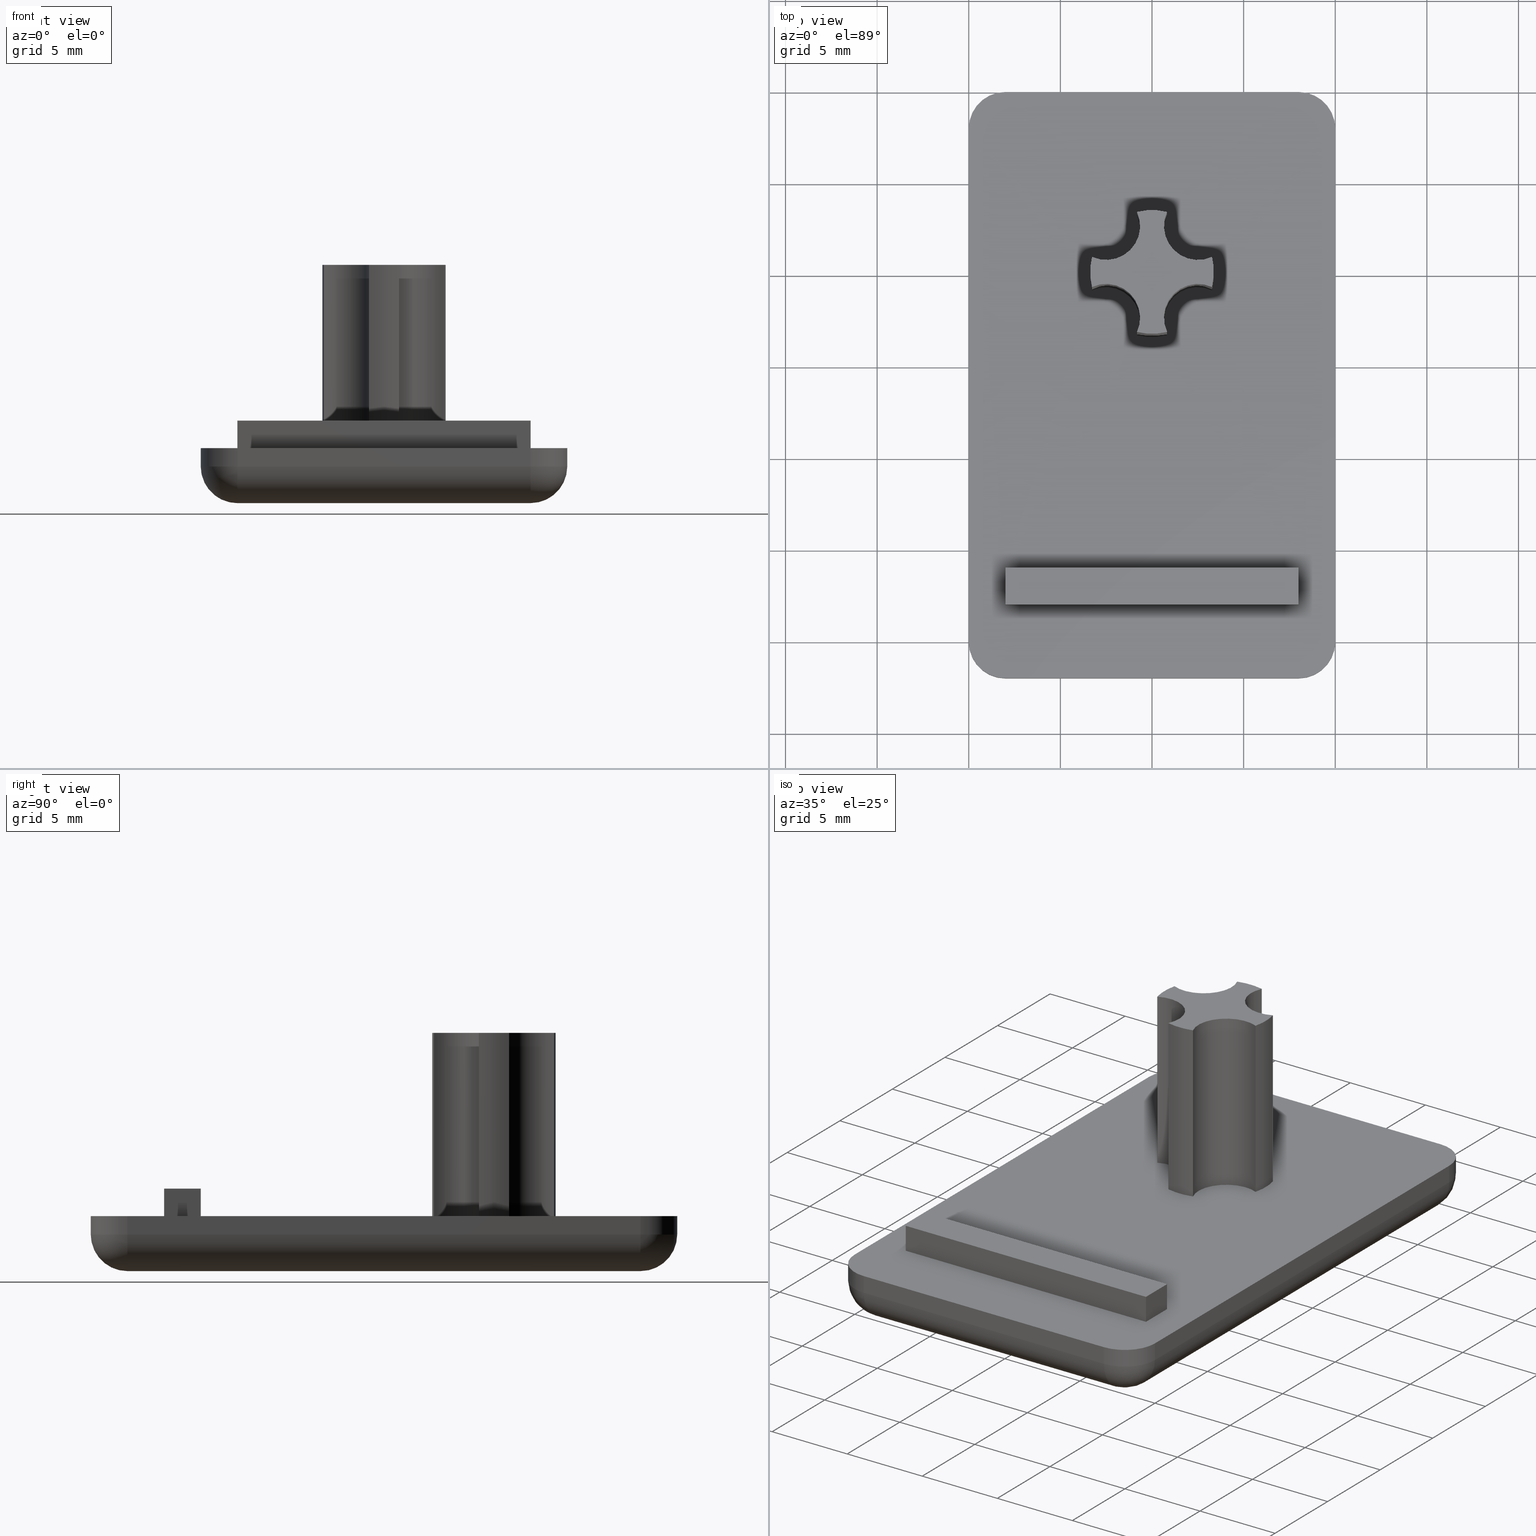
[diagram: canonical four-view strip — front | top / right | iso, engineering-drawing reading convention]
A machine part, canonical four-view strip (front | top / right | iso — engineering-drawing reading convention). The complete STEP part file that produces these views, byte-faithful:
ISO-10303-21;
HEADER;
/* Generated by software containing ST-Developer
 * from STEP Tools, Inc. (www.steptools.com) 
 */

FILE_DESCRIPTION(
/* description */ ('TAPPO 20x32 NERO'),
/* implementation_level */ '2;1');

FILE_NAME(
/* name */ 'C:\\Users\\srubbiani.DR\\Desktop\\18.002.00.stp',
/* time_stamp */ '2014-08-25T12:29:18+02:00',
/* author */ ('SRubbiani'),
/* organization */ (''),
/* preprocessor_version */ 'ST-DEVELOPER v15.2',
/* originating_system */ 'Autodesk Inventor 2014',
/* authorisation */ '');

FILE_SCHEMA (('AUTOMOTIVE_DESIGN { 1 0 10303 214 3 1 1 }'));
ENDSEC;

DATA;
#10=MECHANICAL_DESIGN_GEOMETRIC_PRESENTATION_REPRESENTATION('',(#13),#907);
#11=SHAPE_REPRESENTATION_RELATIONSHIP('SRR','None',#916,#12);
#12=ADVANCED_BREP_SHAPE_REPRESENTATION($,(#519),#906);
#13=STYLED_ITEM('',(#925),#519);
#14=FACE_BOUND('',#95,.T.);
#15=FACE_BOUND('',#96,.T.);
#16=FACE_BOUND('',#97,.T.);
#17=PLANE('',#543);
#18=PLANE('',#546);
#19=PLANE('',#547);
#20=PLANE('',#548);
#21=PLANE('',#549);
#22=PLANE('',#550);
#23=PLANE('',#551);
#24=PLANE('',#552);
#25=PLANE('',#577);
#26=PLANE('',#578);
#27=PLANE('',#581);
#28=PLANE('',#584);
#29=SPHERICAL_SURFACE('',#527,2.);
#30=SPHERICAL_SURFACE('',#532,2.);
#31=SPHERICAL_SURFACE('',#537,2.);
#32=SPHERICAL_SURFACE('',#539,2.);
#33=FACE_OUTER_BOUND('',#64,.T.);
#34=FACE_OUTER_BOUND('',#65,.T.);
#35=FACE_OUTER_BOUND('',#66,.T.);
#36=FACE_OUTER_BOUND('',#67,.T.);
#37=FACE_OUTER_BOUND('',#68,.T.);
#38=FACE_OUTER_BOUND('',#69,.T.);
#39=FACE_OUTER_BOUND('',#70,.T.);
#40=FACE_OUTER_BOUND('',#71,.T.);
#41=FACE_OUTER_BOUND('',#72,.T.);
#42=FACE_OUTER_BOUND('',#73,.T.);
#43=FACE_OUTER_BOUND('',#74,.T.);
#44=FACE_OUTER_BOUND('',#75,.T.);
#45=FACE_OUTER_BOUND('',#76,.T.);
#46=FACE_OUTER_BOUND('',#77,.T.);
#47=FACE_OUTER_BOUND('',#78,.T.);
#48=FACE_OUTER_BOUND('',#79,.T.);
#49=FACE_OUTER_BOUND('',#80,.T.);
#50=FACE_OUTER_BOUND('',#81,.T.);
#51=FACE_OUTER_BOUND('',#82,.T.);
#52=FACE_OUTER_BOUND('',#83,.T.);
#53=FACE_OUTER_BOUND('',#84,.T.);
#54=FACE_OUTER_BOUND('',#85,.T.);
#55=FACE_OUTER_BOUND('',#86,.T.);
#56=FACE_OUTER_BOUND('',#87,.T.);
#57=FACE_OUTER_BOUND('',#88,.T.);
#58=FACE_OUTER_BOUND('',#89,.T.);
#59=FACE_OUTER_BOUND('',#90,.T.);
#60=FACE_OUTER_BOUND('',#91,.T.);
#61=FACE_OUTER_BOUND('',#92,.T.);
#62=FACE_OUTER_BOUND('',#93,.T.);
#63=FACE_OUTER_BOUND('',#94,.T.);
#64=EDGE_LOOP('',(#326,#327,#328,#329));
#65=EDGE_LOOP('',(#330,#331,#332,#333));
#66=EDGE_LOOP('',(#334,#335,#336));
#67=EDGE_LOOP('',(#337,#338,#339,#340));
#68=EDGE_LOOP('',(#341,#342,#343));
#69=EDGE_LOOP('',(#344,#345,#346,#347));
#70=EDGE_LOOP('',(#348,#349,#350));
#71=EDGE_LOOP('',(#351,#352,#353));
#72=EDGE_LOOP('',(#354,#355,#356,#357));
#73=EDGE_LOOP('',(#358,#359,#360,#361));
#74=EDGE_LOOP('',(#362,#363,#364,#365));
#75=EDGE_LOOP('',(#366,#367,#368,#369));
#76=EDGE_LOOP('',(#370,#371,#372,#373));
#77=EDGE_LOOP('',(#374,#375,#376,#377));
#78=EDGE_LOOP('',(#378,#379,#380,#381));
#79=EDGE_LOOP('',(#382,#383,#384,#385));
#80=EDGE_LOOP('',(#386,#387,#388,#389));
#81=EDGE_LOOP('',(#390,#391,#392,#393));
#82=EDGE_LOOP('',(#394,#395,#396,#397));
#83=EDGE_LOOP('',(#398,#399,#400,#401));
#84=EDGE_LOOP('',(#402,#403,#404,#405));
#85=EDGE_LOOP('',(#406,#407,#408,#409));
#86=EDGE_LOOP('',(#410,#411,#412,#413));
#87=EDGE_LOOP('',(#414,#415,#416,#417));
#88=EDGE_LOOP('',(#418,#419,#420,#421));
#89=EDGE_LOOP('',(#422,#423,#424,#425));
#90=EDGE_LOOP('',(#426,#427,#428,#429,#430,#431,#432,#433));
#91=EDGE_LOOP('',(#434,#435,#436,#437));
#92=EDGE_LOOP('',(#438,#439,#440,#441));
#93=EDGE_LOOP('',(#442,#443,#444,#445));
#94=EDGE_LOOP('',(#446,#447,#448,#449));
#95=EDGE_LOOP('',(#450,#451,#452,#453));
#96=EDGE_LOOP('',(#454,#455,#456,#457,#458,#459,#460,#461));
#97=EDGE_LOOP('',(#462,#463,#464,#465,#466,#467,#468,#469));
#98=LINE('',#761,#138);
#99=LINE('',#764,#139);
#100=LINE('',#769,#140);
#101=LINE('',#772,#141);
#102=LINE('',#779,#142);
#103=LINE('',#782,#143);
#104=LINE('',#788,#144);
#105=LINE('',#791,#145);
#106=LINE('',#798,#146);
#107=LINE('',#801,#147);
#108=LINE('',#804,#148);
#109=LINE('',#805,#149);
#110=LINE('',#808,#150);
#111=LINE('',#812,#151);
#112=LINE('',#813,#152);
#113=LINE('',#818,#153);
#114=LINE('',#820,#154);
#115=LINE('',#822,#155);
#116=LINE('',#823,#156);
#117=LINE('',#826,#157);
#118=LINE('',#828,#158);
#119=LINE('',#829,#159);
#120=LINE('',#832,#160);
#121=LINE('',#834,#161);
#122=LINE('',#835,#162);
#123=LINE('',#837,#163);
#124=LINE('',#838,#164);
#125=LINE('',#845,#165);
#126=LINE('',#848,#166);
#127=LINE('',#853,#167);
#128=LINE('',#859,#168);
#129=LINE('',#865,#169);
#130=LINE('',#872,#170);
#131=LINE('',#878,#171);
#132=LINE('',#884,#172);
#133=LINE('',#891,#173);
#134=LINE('',#892,#174);
#135=LINE('',#896,#175);
#136=LINE('',#899,#176);
#137=LINE('',#900,#177);
#138=VECTOR('',#591,16.);
#139=VECTOR('',#594,16.);
#140=VECTOR('',#599,28.);
#141=VECTOR('',#602,28.);
#142=VECTOR('',#611,16.);
#143=VECTOR('',#614,16.);
#144=VECTOR('',#623,28.);
#145=VECTOR('',#626,28.);
#146=VECTOR('',#637,1.);
#147=VECTOR('',#640,1.);
#148=VECTOR('',#643,1.);
#149=VECTOR('',#644,16.);
#150=VECTOR('',#647,1.);
#151=VECTOR('',#652,1.);
#152=VECTOR('',#653,28.);
#153=VECTOR('',#658,2.);
#154=VECTOR('',#659,1.5);
#155=VECTOR('',#660,2.);
#156=VECTOR('',#661,1.5);
#157=VECTOR('',#664,16.);
#158=VECTOR('',#665,16.);
#159=VECTOR('',#666,1.5);
#160=VECTOR('',#669,2.);
#161=VECTOR('',#670,2.);
#162=VECTOR('',#671,1.5);
#163=VECTOR('',#674,16.);
#164=VECTOR('',#675,16.);
#165=VECTOR('',#682,10.);
#166=VECTOR('',#685,10.);
#167=VECTOR('',#690,10.);
#168=VECTOR('',#697,10.);
#169=VECTOR('',#704,10.);
#170=VECTOR('',#713,10.);
#171=VECTOR('',#720,10.);
#172=VECTOR('',#727,10.);
#173=VECTOR('',#738,28.);
#174=VECTOR('',#739,1.);
#175=VECTOR('',#744,1.);
#176=VECTOR('',#747,16.);
#177=VECTOR('',#748,1.);
#178=CIRCLE('',#522,2.);
#179=CIRCLE('',#523,2.);
#180=CIRCLE('',#525,2.);
#181=CIRCLE('',#526,2.);
#182=CIRCLE('',#528,2.);
#183=CIRCLE('',#530,2.);
#184=CIRCLE('',#531,2.);
#185=CIRCLE('',#533,2.);
#186=CIRCLE('',#535,2.);
#187=CIRCLE('',#536,2.);
#188=CIRCLE('',#538,2.);
#189=CIRCLE('',#540,2.);
#190=CIRCLE('',#542,2.);
#191=CIRCLE('',#545,2.);
#192=CIRCLE('',#554,3.37499999999998);
#193=CIRCLE('',#555,3.37499999999998);
#194=CIRCLE('',#557,1.85);
#195=CIRCLE('',#558,1.85);
#196=CIRCLE('',#560,3.375);
#197=CIRCLE('',#561,3.375);
#198=CIRCLE('',#563,1.85);
#199=CIRCLE('',#564,1.85);
#200=CIRCLE('',#566,1.85);
#201=CIRCLE('',#567,1.85);
#202=CIRCLE('',#569,3.375);
#203=CIRCLE('',#570,3.375);
#204=CIRCLE('',#572,1.85);
#205=CIRCLE('',#573,1.85);
#206=CIRCLE('',#575,3.375);
#207=CIRCLE('',#576,3.375);
#208=CIRCLE('',#580,2.);
#209=CIRCLE('',#583,2.);
#210=VERTEX_POINT('',#757);
#211=VERTEX_POINT('',#758);
#212=VERTEX_POINT('',#760);
#213=VERTEX_POINT('',#762);
#214=VERTEX_POINT('',#766);
#215=VERTEX_POINT('',#768);
#216=VERTEX_POINT('',#770);
#217=VERTEX_POINT('',#776);
#218=VERTEX_POINT('',#778);
#219=VERTEX_POINT('',#780);
#220=VERTEX_POINT('',#786);
#221=VERTEX_POINT('',#789);
#222=VERTEX_POINT('',#797);
#223=VERTEX_POINT('',#799);
#224=VERTEX_POINT('',#803);
#225=VERTEX_POINT('',#807);
#226=VERTEX_POINT('',#811);
#227=VERTEX_POINT('',#816);
#228=VERTEX_POINT('',#817);
#229=VERTEX_POINT('',#819);
#230=VERTEX_POINT('',#821);
#231=VERTEX_POINT('',#825);
#232=VERTEX_POINT('',#827);
#233=VERTEX_POINT('',#831);
#234=VERTEX_POINT('',#833);
#235=VERTEX_POINT('',#841);
#236=VERTEX_POINT('',#842);
#237=VERTEX_POINT('',#844);
#238=VERTEX_POINT('',#846);
#239=VERTEX_POINT('',#850);
#240=VERTEX_POINT('',#852);
#241=VERTEX_POINT('',#856);
#242=VERTEX_POINT('',#858);
#243=VERTEX_POINT('',#862);
#244=VERTEX_POINT('',#864);
#245=VERTEX_POINT('',#868);
#246=VERTEX_POINT('',#870);
#247=VERTEX_POINT('',#874);
#248=VERTEX_POINT('',#876);
#249=VERTEX_POINT('',#880);
#250=VERTEX_POINT('',#882);
#251=VERTEX_POINT('',#890);
#252=VERTEX_POINT('',#894);
#253=VERTEX_POINT('',#898);
#254=EDGE_CURVE('',#210,#211,#178,.T.);
#255=EDGE_CURVE('',#211,#212,#98,.T.);
#256=EDGE_CURVE('',#212,#213,#179,.T.);
#257=EDGE_CURVE('',#213,#210,#99,.T.);
#258=EDGE_CURVE('',#214,#212,#180,.T.);
#259=EDGE_CURVE('',#212,#215,#100,.T.);
#260=EDGE_CURVE('',#215,#216,#181,.T.);
#261=EDGE_CURVE('',#216,#214,#101,.T.);
#262=EDGE_CURVE('',#214,#213,#182,.T.);
#263=EDGE_CURVE('',#217,#215,#183,.T.);
#264=EDGE_CURVE('',#215,#218,#102,.T.);
#265=EDGE_CURVE('',#218,#219,#184,.T.);
#266=EDGE_CURVE('',#219,#217,#103,.T.);
#267=EDGE_CURVE('',#217,#216,#185,.T.);
#268=EDGE_CURVE('',#220,#218,#186,.T.);
#269=EDGE_CURVE('',#218,#211,#104,.T.);
#270=EDGE_CURVE('',#211,#221,#187,.T.);
#271=EDGE_CURVE('',#221,#220,#105,.T.);
#272=EDGE_CURVE('',#220,#219,#188,.T.);
#273=EDGE_CURVE('',#210,#221,#189,.T.);
#274=EDGE_CURVE('',#217,#222,#106,.T.);
#275=EDGE_CURVE('',#223,#222,#190,.T.);
#276=EDGE_CURVE('',#216,#223,#107,.T.);
#277=EDGE_CURVE('',#219,#224,#108,.T.);
#278=EDGE_CURVE('',#222,#224,#109,.T.);
#279=EDGE_CURVE('',#220,#225,#110,.T.);
#280=EDGE_CURVE('',#224,#225,#191,.T.);
#281=EDGE_CURVE('',#221,#226,#111,.T.);
#282=EDGE_CURVE('',#225,#226,#112,.T.);
#283=EDGE_CURVE('',#227,#228,#113,.T.);
#284=EDGE_CURVE('',#227,#229,#114,.T.);
#285=EDGE_CURVE('',#230,#229,#115,.T.);
#286=EDGE_CURVE('',#228,#230,#116,.T.);
#287=EDGE_CURVE('',#228,#231,#117,.T.);
#288=EDGE_CURVE('',#232,#230,#118,.T.);
#289=EDGE_CURVE('',#231,#232,#119,.T.);
#290=EDGE_CURVE('',#231,#233,#120,.T.);
#291=EDGE_CURVE('',#234,#232,#121,.T.);
#292=EDGE_CURVE('',#233,#234,#122,.T.);
#293=EDGE_CURVE('',#233,#227,#123,.T.);
#294=EDGE_CURVE('',#229,#234,#124,.T.);
#295=EDGE_CURVE('',#235,#236,#192,.T.);
#296=EDGE_CURVE('',#235,#237,#125,.T.);
#297=EDGE_CURVE('',#238,#237,#193,.T.);
#298=EDGE_CURVE('',#236,#238,#126,.T.);
#299=EDGE_CURVE('',#239,#235,#194,.T.);
#300=EDGE_CURVE('',#239,#240,#127,.T.);
#301=EDGE_CURVE('',#237,#240,#195,.T.);
#302=EDGE_CURVE('',#241,#239,#196,.T.);
#303=EDGE_CURVE('',#241,#242,#128,.T.);
#304=EDGE_CURVE('',#240,#242,#197,.T.);
#305=EDGE_CURVE('',#243,#241,#198,.T.);
#306=EDGE_CURVE('',#243,#244,#129,.T.);
#307=EDGE_CURVE('',#242,#244,#199,.T.);
#308=EDGE_CURVE('',#236,#245,#200,.T.);
#309=EDGE_CURVE('',#246,#238,#201,.T.);
#310=EDGE_CURVE('',#245,#246,#130,.T.);
#311=EDGE_CURVE('',#245,#247,#202,.T.);
#312=EDGE_CURVE('',#248,#246,#203,.T.);
#313=EDGE_CURVE('',#247,#248,#131,.T.);
#314=EDGE_CURVE('',#247,#249,#204,.T.);
#315=EDGE_CURVE('',#250,#248,#205,.T.);
#316=EDGE_CURVE('',#249,#250,#132,.T.);
#317=EDGE_CURVE('',#249,#243,#206,.T.);
#318=EDGE_CURVE('',#244,#250,#207,.T.);
#319=EDGE_CURVE('',#251,#223,#133,.T.);
#320=EDGE_CURVE('',#214,#251,#134,.T.);
#321=EDGE_CURVE('',#252,#251,#208,.T.);
#322=EDGE_CURVE('',#213,#252,#135,.T.);
#323=EDGE_CURVE('',#253,#252,#136,.T.);
#324=EDGE_CURVE('',#210,#253,#137,.T.);
#325=EDGE_CURVE('',#226,#253,#209,.T.);
#326=ORIENTED_EDGE('',*,*,#254,.T.);
#327=ORIENTED_EDGE('',*,*,#255,.T.);
#328=ORIENTED_EDGE('',*,*,#256,.T.);
#329=ORIENTED_EDGE('',*,*,#257,.T.);
#330=ORIENTED_EDGE('',*,*,#258,.T.);
#331=ORIENTED_EDGE('',*,*,#259,.T.);
#332=ORIENTED_EDGE('',*,*,#260,.T.);
#333=ORIENTED_EDGE('',*,*,#261,.T.);
#334=ORIENTED_EDGE('',*,*,#258,.F.);
#335=ORIENTED_EDGE('',*,*,#262,.T.);
#336=ORIENTED_EDGE('',*,*,#256,.F.);
#337=ORIENTED_EDGE('',*,*,#263,.T.);
#338=ORIENTED_EDGE('',*,*,#264,.T.);
#339=ORIENTED_EDGE('',*,*,#265,.T.);
#340=ORIENTED_EDGE('',*,*,#266,.T.);
#341=ORIENTED_EDGE('',*,*,#263,.F.);
#342=ORIENTED_EDGE('',*,*,#267,.T.);
#343=ORIENTED_EDGE('',*,*,#260,.F.);
#344=ORIENTED_EDGE('',*,*,#268,.T.);
#345=ORIENTED_EDGE('',*,*,#269,.T.);
#346=ORIENTED_EDGE('',*,*,#270,.T.);
#347=ORIENTED_EDGE('',*,*,#271,.T.);
#348=ORIENTED_EDGE('',*,*,#268,.F.);
#349=ORIENTED_EDGE('',*,*,#272,.T.);
#350=ORIENTED_EDGE('',*,*,#265,.F.);
#351=ORIENTED_EDGE('',*,*,#254,.F.);
#352=ORIENTED_EDGE('',*,*,#273,.T.);
#353=ORIENTED_EDGE('',*,*,#270,.F.);
#354=ORIENTED_EDGE('',*,*,#267,.F.);
#355=ORIENTED_EDGE('',*,*,#274,.T.);
#356=ORIENTED_EDGE('',*,*,#275,.F.);
#357=ORIENTED_EDGE('',*,*,#276,.F.);
#358=ORIENTED_EDGE('',*,*,#266,.F.);
#359=ORIENTED_EDGE('',*,*,#277,.T.);
#360=ORIENTED_EDGE('',*,*,#278,.F.);
#361=ORIENTED_EDGE('',*,*,#274,.F.);
#362=ORIENTED_EDGE('',*,*,#272,.F.);
#363=ORIENTED_EDGE('',*,*,#279,.T.);
#364=ORIENTED_EDGE('',*,*,#280,.F.);
#365=ORIENTED_EDGE('',*,*,#277,.F.);
#366=ORIENTED_EDGE('',*,*,#271,.F.);
#367=ORIENTED_EDGE('',*,*,#281,.T.);
#368=ORIENTED_EDGE('',*,*,#282,.F.);
#369=ORIENTED_EDGE('',*,*,#279,.F.);
#370=ORIENTED_EDGE('',*,*,#255,.F.);
#371=ORIENTED_EDGE('',*,*,#269,.F.);
#372=ORIENTED_EDGE('',*,*,#264,.F.);
#373=ORIENTED_EDGE('',*,*,#259,.F.);
#374=ORIENTED_EDGE('',*,*,#283,.F.);
#375=ORIENTED_EDGE('',*,*,#284,.T.);
#376=ORIENTED_EDGE('',*,*,#285,.F.);
#377=ORIENTED_EDGE('',*,*,#286,.F.);
#378=ORIENTED_EDGE('',*,*,#287,.F.);
#379=ORIENTED_EDGE('',*,*,#286,.T.);
#380=ORIENTED_EDGE('',*,*,#288,.F.);
#381=ORIENTED_EDGE('',*,*,#289,.F.);
#382=ORIENTED_EDGE('',*,*,#290,.F.);
#383=ORIENTED_EDGE('',*,*,#289,.T.);
#384=ORIENTED_EDGE('',*,*,#291,.F.);
#385=ORIENTED_EDGE('',*,*,#292,.F.);
#386=ORIENTED_EDGE('',*,*,#293,.F.);
#387=ORIENTED_EDGE('',*,*,#292,.T.);
#388=ORIENTED_EDGE('',*,*,#294,.F.);
#389=ORIENTED_EDGE('',*,*,#284,.F.);
#390=ORIENTED_EDGE('',*,*,#294,.T.);
#391=ORIENTED_EDGE('',*,*,#291,.T.);
#392=ORIENTED_EDGE('',*,*,#288,.T.);
#393=ORIENTED_EDGE('',*,*,#285,.T.);
#394=ORIENTED_EDGE('',*,*,#295,.F.);
#395=ORIENTED_EDGE('',*,*,#296,.T.);
#396=ORIENTED_EDGE('',*,*,#297,.F.);
#397=ORIENTED_EDGE('',*,*,#298,.F.);
#398=ORIENTED_EDGE('',*,*,#299,.F.);
#399=ORIENTED_EDGE('',*,*,#300,.T.);
#400=ORIENTED_EDGE('',*,*,#301,.F.);
#401=ORIENTED_EDGE('',*,*,#296,.F.);
#402=ORIENTED_EDGE('',*,*,#302,.F.);
#403=ORIENTED_EDGE('',*,*,#303,.T.);
#404=ORIENTED_EDGE('',*,*,#304,.F.);
#405=ORIENTED_EDGE('',*,*,#300,.F.);
#406=ORIENTED_EDGE('',*,*,#305,.F.);
#407=ORIENTED_EDGE('',*,*,#306,.T.);
#408=ORIENTED_EDGE('',*,*,#307,.F.);
#409=ORIENTED_EDGE('',*,*,#303,.F.);
#410=ORIENTED_EDGE('',*,*,#308,.F.);
#411=ORIENTED_EDGE('',*,*,#298,.T.);
#412=ORIENTED_EDGE('',*,*,#309,.F.);
#413=ORIENTED_EDGE('',*,*,#310,.F.);
#414=ORIENTED_EDGE('',*,*,#311,.F.);
#415=ORIENTED_EDGE('',*,*,#310,.T.);
#416=ORIENTED_EDGE('',*,*,#312,.F.);
#417=ORIENTED_EDGE('',*,*,#313,.F.);
#418=ORIENTED_EDGE('',*,*,#314,.F.);
#419=ORIENTED_EDGE('',*,*,#313,.T.);
#420=ORIENTED_EDGE('',*,*,#315,.F.);
#421=ORIENTED_EDGE('',*,*,#316,.F.);
#422=ORIENTED_EDGE('',*,*,#317,.F.);
#423=ORIENTED_EDGE('',*,*,#316,.T.);
#424=ORIENTED_EDGE('',*,*,#318,.F.);
#425=ORIENTED_EDGE('',*,*,#306,.F.);
#426=ORIENTED_EDGE('',*,*,#307,.T.);
#427=ORIENTED_EDGE('',*,*,#318,.T.);
#428=ORIENTED_EDGE('',*,*,#315,.T.);
#429=ORIENTED_EDGE('',*,*,#312,.T.);
#430=ORIENTED_EDGE('',*,*,#309,.T.);
#431=ORIENTED_EDGE('',*,*,#297,.T.);
#432=ORIENTED_EDGE('',*,*,#301,.T.);
#433=ORIENTED_EDGE('',*,*,#304,.T.);
#434=ORIENTED_EDGE('',*,*,#261,.F.);
#435=ORIENTED_EDGE('',*,*,#276,.T.);
#436=ORIENTED_EDGE('',*,*,#319,.F.);
#437=ORIENTED_EDGE('',*,*,#320,.F.);
#438=ORIENTED_EDGE('',*,*,#262,.F.);
#439=ORIENTED_EDGE('',*,*,#320,.T.);
#440=ORIENTED_EDGE('',*,*,#321,.F.);
#441=ORIENTED_EDGE('',*,*,#322,.F.);
#442=ORIENTED_EDGE('',*,*,#257,.F.);
#443=ORIENTED_EDGE('',*,*,#322,.T.);
#444=ORIENTED_EDGE('',*,*,#323,.F.);
#445=ORIENTED_EDGE('',*,*,#324,.F.);
#446=ORIENTED_EDGE('',*,*,#273,.F.);
#447=ORIENTED_EDGE('',*,*,#324,.T.);
#448=ORIENTED_EDGE('',*,*,#325,.F.);
#449=ORIENTED_EDGE('',*,*,#281,.F.);
#450=ORIENTED_EDGE('',*,*,#283,.T.);
#451=ORIENTED_EDGE('',*,*,#287,.T.);
#452=ORIENTED_EDGE('',*,*,#290,.T.);
#453=ORIENTED_EDGE('',*,*,#293,.T.);
#454=ORIENTED_EDGE('',*,*,#305,.T.);
#455=ORIENTED_EDGE('',*,*,#302,.T.);
#456=ORIENTED_EDGE('',*,*,#299,.T.);
#457=ORIENTED_EDGE('',*,*,#295,.T.);
#458=ORIENTED_EDGE('',*,*,#308,.T.);
#459=ORIENTED_EDGE('',*,*,#311,.T.);
#460=ORIENTED_EDGE('',*,*,#314,.T.);
#461=ORIENTED_EDGE('',*,*,#317,.T.);
#462=ORIENTED_EDGE('',*,*,#280,.T.);
#463=ORIENTED_EDGE('',*,*,#282,.T.);
#464=ORIENTED_EDGE('',*,*,#325,.T.);
#465=ORIENTED_EDGE('',*,*,#323,.T.);
#466=ORIENTED_EDGE('',*,*,#321,.T.);
#467=ORIENTED_EDGE('',*,*,#319,.T.);
#468=ORIENTED_EDGE('',*,*,#275,.T.);
#469=ORIENTED_EDGE('',*,*,#278,.T.);
#470=CYLINDRICAL_SURFACE('',#521,2.);
#471=CYLINDRICAL_SURFACE('',#524,2.);
#472=CYLINDRICAL_SURFACE('',#529,2.);
#473=CYLINDRICAL_SURFACE('',#534,2.);
#474=CYLINDRICAL_SURFACE('',#541,2.);
#475=CYLINDRICAL_SURFACE('',#544,2.);
#476=CYLINDRICAL_SURFACE('',#553,3.37499999999998);
#477=CYLINDRICAL_SURFACE('',#556,1.85);
#478=CYLINDRICAL_SURFACE('',#559,3.375);
#479=CYLINDRICAL_SURFACE('',#562,1.85);
#480=CYLINDRICAL_SURFACE('',#565,1.85);
#481=CYLINDRICAL_SURFACE('',#568,3.375);
#482=CYLINDRICAL_SURFACE('',#571,1.85);
#483=CYLINDRICAL_SURFACE('',#574,3.375);
#484=CYLINDRICAL_SURFACE('',#579,2.);
#485=CYLINDRICAL_SURFACE('',#582,2.);
#486=ADVANCED_FACE('',(#33),#470,.T.);
#487=ADVANCED_FACE('',(#34),#471,.T.);
#488=ADVANCED_FACE('',(#35),#29,.T.);
#489=ADVANCED_FACE('',(#36),#472,.T.);
#490=ADVANCED_FACE('',(#37),#30,.T.);
#491=ADVANCED_FACE('',(#38),#473,.T.);
#492=ADVANCED_FACE('',(#39),#31,.T.);
#493=ADVANCED_FACE('',(#40),#32,.T.);
#494=ADVANCED_FACE('',(#41),#474,.T.);
#495=ADVANCED_FACE('',(#42),#17,.T.);
#496=ADVANCED_FACE('',(#43),#475,.T.);
#497=ADVANCED_FACE('',(#44),#18,.T.);
#498=ADVANCED_FACE('',(#45),#19,.F.);
#499=ADVANCED_FACE('',(#46),#20,.T.);
#500=ADVANCED_FACE('',(#47),#21,.T.);
#501=ADVANCED_FACE('',(#48),#22,.T.);
#502=ADVANCED_FACE('',(#49),#23,.T.);
#503=ADVANCED_FACE('',(#50),#24,.T.);
#504=ADVANCED_FACE('',(#51),#476,.T.);
#505=ADVANCED_FACE('',(#52),#477,.F.);
#506=ADVANCED_FACE('',(#53),#478,.T.);
#507=ADVANCED_FACE('',(#54),#479,.F.);
#508=ADVANCED_FACE('',(#55),#480,.F.);
#509=ADVANCED_FACE('',(#56),#481,.T.);
#510=ADVANCED_FACE('',(#57),#482,.F.);
#511=ADVANCED_FACE('',(#58),#483,.T.);
#512=ADVANCED_FACE('',(#59),#25,.T.);
#513=ADVANCED_FACE('',(#60),#26,.T.);
#514=ADVANCED_FACE('',(#61),#484,.T.);
#515=ADVANCED_FACE('',(#62),#27,.T.);
#516=ADVANCED_FACE('',(#63),#485,.T.);
#517=ADVANCED_FACE('',(#14,#15,#16),#28,.T.);
#518=CLOSED_SHELL('',(#486,#487,#488,#489,#490,#491,#492,#493,#494,#495,
#496,#497,#498,#499,#500,#501,#502,#503,#504,#505,#506,#507,#508,#509,#510,
#511,#512,#513,#514,#515,#516,#517));
#519=MANIFOLD_SOLID_BREP('Solido1',#518);
#520=AXIS2_PLACEMENT_3D('placement',#755,#585,#586);
#521=AXIS2_PLACEMENT_3D('',#756,#587,#588);
#522=AXIS2_PLACEMENT_3D('',#759,#589,#590);
#523=AXIS2_PLACEMENT_3D('',#763,#592,#593);
#524=AXIS2_PLACEMENT_3D('',#765,#595,#596);
#525=AXIS2_PLACEMENT_3D('',#767,#597,#598);
#526=AXIS2_PLACEMENT_3D('',#771,#600,#601);
#527=AXIS2_PLACEMENT_3D('',#773,#603,#604);
#528=AXIS2_PLACEMENT_3D('',#774,#605,#606);
#529=AXIS2_PLACEMENT_3D('',#775,#607,#608);
#530=AXIS2_PLACEMENT_3D('',#777,#609,#610);
#531=AXIS2_PLACEMENT_3D('',#781,#612,#613);
#532=AXIS2_PLACEMENT_3D('',#783,#615,#616);
#533=AXIS2_PLACEMENT_3D('',#784,#617,#618);
#534=AXIS2_PLACEMENT_3D('',#785,#619,#620);
#535=AXIS2_PLACEMENT_3D('',#787,#621,#622);
#536=AXIS2_PLACEMENT_3D('',#790,#624,#625);
#537=AXIS2_PLACEMENT_3D('',#792,#627,#628);
#538=AXIS2_PLACEMENT_3D('',#793,#629,#630);
#539=AXIS2_PLACEMENT_3D('',#794,#631,#632);
#540=AXIS2_PLACEMENT_3D('',#795,#633,#634);
#541=AXIS2_PLACEMENT_3D('',#796,#635,#636);
#542=AXIS2_PLACEMENT_3D('',#800,#638,#639);
#543=AXIS2_PLACEMENT_3D('',#802,#641,#642);
#544=AXIS2_PLACEMENT_3D('',#806,#645,#646);
#545=AXIS2_PLACEMENT_3D('',#809,#648,#649);
#546=AXIS2_PLACEMENT_3D('',#810,#650,#651);
#547=AXIS2_PLACEMENT_3D('',#814,#654,#655);
#548=AXIS2_PLACEMENT_3D('',#815,#656,#657);
#549=AXIS2_PLACEMENT_3D('',#824,#662,#663);
#550=AXIS2_PLACEMENT_3D('',#830,#667,#668);
#551=AXIS2_PLACEMENT_3D('',#836,#672,#673);
#552=AXIS2_PLACEMENT_3D('',#839,#676,#677);
#553=AXIS2_PLACEMENT_3D('',#840,#678,#679);
#554=AXIS2_PLACEMENT_3D('',#843,#680,#681);
#555=AXIS2_PLACEMENT_3D('',#847,#683,#684);
#556=AXIS2_PLACEMENT_3D('',#849,#686,#687);
#557=AXIS2_PLACEMENT_3D('',#851,#688,#689);
#558=AXIS2_PLACEMENT_3D('',#854,#691,#692);
#559=AXIS2_PLACEMENT_3D('',#855,#693,#694);
#560=AXIS2_PLACEMENT_3D('',#857,#695,#696);
#561=AXIS2_PLACEMENT_3D('',#860,#698,#699);
#562=AXIS2_PLACEMENT_3D('',#861,#700,#701);
#563=AXIS2_PLACEMENT_3D('',#863,#702,#703);
#564=AXIS2_PLACEMENT_3D('',#866,#705,#706);
#565=AXIS2_PLACEMENT_3D('',#867,#707,#708);
#566=AXIS2_PLACEMENT_3D('',#869,#709,#710);
#567=AXIS2_PLACEMENT_3D('',#871,#711,#712);
#568=AXIS2_PLACEMENT_3D('',#873,#714,#715);
#569=AXIS2_PLACEMENT_3D('',#875,#716,#717);
#570=AXIS2_PLACEMENT_3D('',#877,#718,#719);
#571=AXIS2_PLACEMENT_3D('',#879,#721,#722);
#572=AXIS2_PLACEMENT_3D('',#881,#723,#724);
#573=AXIS2_PLACEMENT_3D('',#883,#725,#726);
#574=AXIS2_PLACEMENT_3D('',#885,#728,#729);
#575=AXIS2_PLACEMENT_3D('',#886,#730,#731);
#576=AXIS2_PLACEMENT_3D('',#887,#732,#733);
#577=AXIS2_PLACEMENT_3D('',#888,#734,#735);
#578=AXIS2_PLACEMENT_3D('',#889,#736,#737);
#579=AXIS2_PLACEMENT_3D('',#893,#740,#741);
#580=AXIS2_PLACEMENT_3D('',#895,#742,#743);
#581=AXIS2_PLACEMENT_3D('',#897,#745,#746);
#582=AXIS2_PLACEMENT_3D('',#901,#749,#750);
#583=AXIS2_PLACEMENT_3D('',#902,#751,#752);
#584=AXIS2_PLACEMENT_3D('',#903,#753,#754);
#585=DIRECTION('axis',(0.,0.,1.));
#586=DIRECTION('refdir',(1.,0.,0.));
#587=DIRECTION('center_axis',(-1.,1.38777878078145E-015,0.));
#588=DIRECTION('ref_axis',(1.17756934401283E-015,0.707106781186547,-0.707106781186548));
#589=DIRECTION('center_axis',(-1.,1.66533453693774E-015,0.));
#590=DIRECTION('ref_axis',(1.66533453693774E-015,1.,0.));
#591=DIRECTION('',(-1.,1.38777878078145E-015,0.));
#592=DIRECTION('center_axis',(1.,-1.66533453693774E-015,0.));
#593=DIRECTION('ref_axis',(0.,0.,-1.));
#594=DIRECTION('',(1.,-1.38777878078145E-015,0.));
#595=DIRECTION('center_axis',(-5.55111512312578E-016,-1.,0.));
#596=DIRECTION('ref_axis',(-0.707106781186547,3.92523114670944E-016,-0.707106781186548));
#597=DIRECTION('center_axis',(-5.55111512312578E-016,-1.,0.));
#598=DIRECTION('ref_axis',(-1.,5.55111512312578E-016,0.));
#599=DIRECTION('',(-5.55111512312578E-016,-1.,0.));
#600=DIRECTION('center_axis',(0.,1.,0.));
#601=DIRECTION('ref_axis',(0.,0.,-1.));
#602=DIRECTION('',(5.55111512312578E-016,1.,0.));
#603=DIRECTION('center_axis',(-0.816496580927727,-0.408248290463863,0.408248290463862));
#604=DIRECTION('ref_axis',(-0.577350269189625,0.577350269189628,-0.577350269189625));
#605=DIRECTION('center_axis',(0.,0.,-1.));
#606=DIRECTION('ref_axis',(1.11022302462516E-015,1.,0.));
#607=DIRECTION('center_axis',(1.,-1.38777878078145E-015,0.));
#608=DIRECTION('ref_axis',(-1.17756934401283E-015,-0.707106781186548,-0.707106781186547));
#609=DIRECTION('center_axis',(1.,-1.11022302462516E-015,0.));
#610=DIRECTION('ref_axis',(-1.11022302462516E-015,-1.,0.));
#611=DIRECTION('',(1.,-1.38777878078145E-015,0.));
#612=DIRECTION('center_axis',(-1.,1.11022302462516E-015,0.));
#613=DIRECTION('ref_axis',(0.,0.,-1.));
#614=DIRECTION('',(-1.,1.38777878078145E-015,0.));
#615=DIRECTION('center_axis',(0.408248290463864,0.408248290463863,-0.816496580927725));
#616=DIRECTION('ref_axis',(-0.577350269189627,-0.577350269189624,-0.577350269189626));
#617=DIRECTION('center_axis',(0.,0.,-1.));
#618=DIRECTION('ref_axis',(-1.,2.22044604925031E-015,0.));
#619=DIRECTION('center_axis',(1.26882631385732E-015,1.,0.));
#620=DIRECTION('ref_axis',(0.707106781186547,-1.57009245868378E-015,-0.707106781186548));
#621=DIRECTION('center_axis',(1.11022302462516E-015,1.,0.));
#622=DIRECTION('ref_axis',(1.,-1.11022302462516E-015,0.));
#623=DIRECTION('',(1.26882631385732E-015,1.,0.));
#624=DIRECTION('center_axis',(-1.11022302462516E-015,-1.,0.));
#625=DIRECTION('ref_axis',(0.,0.,-1.));
#626=DIRECTION('',(-1.26882631385732E-015,-1.,0.));
#627=DIRECTION('center_axis',(-0.816496580927728,-0.408248290463861,-0.40824829046386));
#628=DIRECTION('ref_axis',(0.577350269189622,-0.577350269189628,-0.577350269189627));
#629=DIRECTION('center_axis',(0.,0.,-1.));
#630=DIRECTION('ref_axis',(-4.9960036108132E-015,-1.,0.));
#631=DIRECTION('center_axis',(-0.816496580927727,0.408248290463863,-0.40824829046386));
#632=DIRECTION('ref_axis',(0.577350269189624,0.577350269189629,-0.577350269189625));
#633=DIRECTION('center_axis',(0.,0.,-1.));
#634=DIRECTION('ref_axis',(1.,2.77555756156289E-015,0.));
#635=DIRECTION('center_axis',(0.,0.,1.));
#636=DIRECTION('ref_axis',(-1.,2.22044604925031E-015,0.));
#637=DIRECTION('',(0.,0.,1.));
#638=DIRECTION('center_axis',(0.,0.,1.));
#639=DIRECTION('ref_axis',(-1.,2.22044604925031E-015,0.));
#640=DIRECTION('',(0.,0.,1.));
#641=DIRECTION('center_axis',(-1.38777878078145E-015,-1.,0.));
#642=DIRECTION('ref_axis',(1.,-1.4210854715202E-015,0.));
#643=DIRECTION('',(0.,0.,1.));
#644=DIRECTION('',(1.,-1.38777878078145E-015,0.));
#645=DIRECTION('center_axis',(0.,0.,1.));
#646=DIRECTION('ref_axis',(-4.9960036108132E-015,-1.,0.));
#647=DIRECTION('',(0.,0.,1.));
#648=DIRECTION('center_axis',(0.,0.,1.));
#649=DIRECTION('ref_axis',(-4.9960036108132E-015,-1.,0.));
#650=DIRECTION('center_axis',(1.,-1.26882631385732E-015,0.));
#651=DIRECTION('ref_axis',(1.24344978758018E-015,1.,0.));
#652=DIRECTION('',(0.,0.,1.));
#653=DIRECTION('',(1.26882631385732E-015,1.,0.));
#654=DIRECTION('center_axis',(0.,0.,1.));
#655=DIRECTION('ref_axis',(1.,0.,0.));
#656=DIRECTION('center_axis',(1.,0.,0.));
#657=DIRECTION('ref_axis',(0.,1.,0.));
#658=DIRECTION('',(0.,-1.,0.));
#659=DIRECTION('',(0.,0.,1.));
#660=DIRECTION('',(0.,1.,0.));
#661=DIRECTION('',(0.,0.,1.));
#662=DIRECTION('center_axis',(0.,-1.,0.));
#663=DIRECTION('ref_axis',(1.,0.,0.));
#664=DIRECTION('',(-1.,0.,0.));
#665=DIRECTION('',(1.,0.,0.));
#666=DIRECTION('',(0.,0.,1.));
#667=DIRECTION('center_axis',(-1.,-5.55111512312578E-016,0.));
#668=DIRECTION('ref_axis',(5.32907051820075E-016,-1.,0.));
#669=DIRECTION('',(-5.55111512312578E-016,1.,0.));
#670=DIRECTION('',(5.55111512312578E-016,-1.,0.));
#671=DIRECTION('',(0.,0.,1.));
#672=DIRECTION('center_axis',(0.,1.,0.));
#673=DIRECTION('ref_axis',(-1.,0.,0.));
#674=DIRECTION('',(1.,0.,0.));
#675=DIRECTION('',(-1.,0.,0.));
#676=DIRECTION('center_axis',(0.,0.,1.));
#677=DIRECTION('ref_axis',(1.,0.,0.));
#678=DIRECTION('center_axis',(0.,0.,1.));
#679=DIRECTION('ref_axis',(-0.243072958079816,0.970008008755767,0.));
#680=DIRECTION('center_axis',(0.,0.,-1.));
#681=DIRECTION('ref_axis',(-0.243072963343275,-0.970008007436804,0.));
#682=DIRECTION('',(0.,0.,1.));
#683=DIRECTION('center_axis',(0.,0.,1.));
#684=DIRECTION('ref_axis',(-0.243072958079816,0.970008008755767,0.));
#685=DIRECTION('',(0.,0.,1.));
#686=DIRECTION('center_axis',(0.,0.,1.));
#687=DIRECTION('ref_axis',(-0.908686805691409,-0.417478489460648,0.));
#688=DIRECTION('center_axis',(0.,0.,1.));
#689=DIRECTION('ref_axis',(-0.417478489460647,-0.908686805691409,0.));
#690=DIRECTION('',(0.,0.,1.));
#691=DIRECTION('center_axis',(0.,0.,-1.));
#692=DIRECTION('ref_axis',(-0.908686805691409,-0.417478489460648,0.));
#693=DIRECTION('center_axis',(0.,0.,1.));
#694=DIRECTION('ref_axis',(-0.970008008755766,-0.243072958079821,0.));
#695=DIRECTION('center_axis',(0.,0.,-1.));
#696=DIRECTION('ref_axis',(0.970008008755765,-0.243072958079824,0.));
#697=DIRECTION('',(0.,0.,1.));
#698=DIRECTION('center_axis',(0.,0.,1.));
#699=DIRECTION('ref_axis',(-0.970008008755766,-0.243072958079821,0.));
#700=DIRECTION('center_axis',(0.,0.,1.));
#701=DIRECTION('ref_axis',(0.417478489460647,-0.908686805691409,0.));
#702=DIRECTION('center_axis',(0.,0.,1.));
#703=DIRECTION('ref_axis',(0.908686805691408,-0.417478489460648,0.));
#704=DIRECTION('',(0.,0.,1.));
#705=DIRECTION('center_axis',(0.,0.,-1.));
#706=DIRECTION('ref_axis',(0.417478489460647,-0.908686805691409,0.));
#707=DIRECTION('center_axis',(0.,0.,1.));
#708=DIRECTION('ref_axis',(-0.417478467246224,0.908686815897393,0.));
#709=DIRECTION('center_axis',(0.,0.,1.));
#710=DIRECTION('ref_axis',(-0.908686815897392,0.417478467246227,0.));
#711=DIRECTION('center_axis',(0.,0.,-1.));
#712=DIRECTION('ref_axis',(-0.417478467246224,0.908686815897393,0.));
#713=DIRECTION('',(0.,0.,1.));
#714=DIRECTION('center_axis',(0.,0.,1.));
#715=DIRECTION('ref_axis',(0.970008007436807,0.243072963343263,0.));
#716=DIRECTION('center_axis',(0.,0.,-1.));
#717=DIRECTION('ref_axis',(-0.970008008755765,0.243072958079824,0.));
#718=DIRECTION('center_axis',(0.,0.,1.));
#719=DIRECTION('ref_axis',(0.970008007436807,0.243072963343263,0.));
#720=DIRECTION('',(0.,0.,1.));
#721=DIRECTION('center_axis',(0.,0.,1.));
#722=DIRECTION('ref_axis',(0.90868680569141,0.417478489460646,0.));
#723=DIRECTION('center_axis',(0.,0.,1.));
#724=DIRECTION('ref_axis',(0.417478489460642,0.908686805691411,0.));
#725=DIRECTION('center_axis',(0.,0.,-1.));
#726=DIRECTION('ref_axis',(0.90868680569141,0.417478489460646,0.));
#727=DIRECTION('',(0.,0.,1.));
#728=DIRECTION('center_axis',(0.,0.,1.));
#729=DIRECTION('ref_axis',(0.243072958079821,-0.970008008755766,0.));
#730=DIRECTION('center_axis',(0.,0.,-1.));
#731=DIRECTION('ref_axis',(0.243072958079825,0.970008008755765,0.));
#732=DIRECTION('center_axis',(0.,0.,1.));
#733=DIRECTION('ref_axis',(0.243072958079821,-0.970008008755766,0.));
#734=DIRECTION('center_axis',(0.,0.,1.));
#735=DIRECTION('ref_axis',(1.,0.,0.));
#736=DIRECTION('center_axis',(-1.,5.55111512312578E-016,0.));
#737=DIRECTION('ref_axis',(-5.32907051820075E-016,-1.,0.));
#738=DIRECTION('',(-5.55111512312578E-016,-1.,0.));
#739=DIRECTION('',(0.,0.,1.));
#740=DIRECTION('center_axis',(0.,0.,1.));
#741=DIRECTION('ref_axis',(1.11022302462516E-015,1.,0.));
#742=DIRECTION('center_axis',(0.,0.,1.));
#743=DIRECTION('ref_axis',(1.11022302462516E-015,1.,0.));
#744=DIRECTION('',(0.,0.,1.));
#745=DIRECTION('center_axis',(1.38777878078145E-015,1.,0.));
#746=DIRECTION('ref_axis',(-1.,1.4210854715202E-015,0.));
#747=DIRECTION('',(-1.,1.38777878078145E-015,0.));
#748=DIRECTION('',(0.,0.,1.));
#749=DIRECTION('center_axis',(0.,0.,1.));
#750=DIRECTION('ref_axis',(1.,2.77555756156289E-015,0.));
#751=DIRECTION('center_axis',(0.,0.,1.));
#752=DIRECTION('ref_axis',(1.,2.77555756156289E-015,0.));
#753=DIRECTION('center_axis',(0.,0.,1.));
#754=DIRECTION('ref_axis',(1.,0.,0.));
#755=CARTESIAN_POINT('',(0.,0.,0.));
#756=CARTESIAN_POINT('Origin',(4.00000000000001,8.,2.));
#757=CARTESIAN_POINT('',(8.00000000000001,9.99999999999999,2.));
#758=CARTESIAN_POINT('',(8.00000000000002,8.,0.));
#759=CARTESIAN_POINT('Origin',(8.00000000000001,7.99999999999999,2.));
#760=CARTESIAN_POINT('',(-7.99999999999999,8.00000000000001,0.));
#761=CARTESIAN_POINT('',(4.00000000000001,8.,0.));
#762=CARTESIAN_POINT('',(-7.99999999999999,10.,2.));
#763=CARTESIAN_POINT('Origin',(-7.99999999999999,8.00000000000001,2.));
#764=CARTESIAN_POINT('',(4.00000000000001,9.99999999999999,2.));
#765=CARTESIAN_POINT('Origin',(-8.,1.00000000000001,2.));
#766=CARTESIAN_POINT('',(-9.99999999999999,8.00000000000002,2.));
#767=CARTESIAN_POINT('Origin',(-7.99999999999999,8.00000000000001,2.));
#768=CARTESIAN_POINT('',(-8.00000000000001,-20.,0.));
#769=CARTESIAN_POINT('',(-8.,1.00000000000001,0.));
#770=CARTESIAN_POINT('',(-10.,-20.,2.));
#771=CARTESIAN_POINT('Origin',(-8.00000000000001,-20.,2.));
#772=CARTESIAN_POINT('',(-10.,1.00000000000002,2.));
#773=CARTESIAN_POINT('Origin',(-7.99999999999999,8.00000000000001,2.));
#774=CARTESIAN_POINT('Origin',(-7.99999999999999,8.00000000000001,2.));
#775=CARTESIAN_POINT('Origin',(-4.00000000000001,-20.,2.));
#776=CARTESIAN_POINT('',(-8.00000000000001,-22.,2.));
#777=CARTESIAN_POINT('Origin',(-8.00000000000001,-20.,2.));
#778=CARTESIAN_POINT('',(7.99999999999997,-20.,0.));
#779=CARTESIAN_POINT('',(-4.00000000000001,-20.,0.));
#780=CARTESIAN_POINT('',(7.99999999999997,-22.,2.));
#781=CARTESIAN_POINT('Origin',(7.99999999999997,-20.,2.));
#782=CARTESIAN_POINT('',(-4.00000000000002,-22.,2.));
#783=CARTESIAN_POINT('Origin',(-8.00000000000001,-20.,2.));
#784=CARTESIAN_POINT('Origin',(-8.00000000000001,-20.,2.));
#785=CARTESIAN_POINT('Origin',(7.99999999999999,-13.,2.));
#786=CARTESIAN_POINT('',(9.99999999999998,-20.,2.));
#787=CARTESIAN_POINT('Origin',(7.99999999999998,-20.,2.));
#788=CARTESIAN_POINT('',(7.99999999999999,-13.,0.));
#789=CARTESIAN_POINT('',(10.,7.99999999999999,2.));
#790=CARTESIAN_POINT('Origin',(8.00000000000002,8.,2.));
#791=CARTESIAN_POINT('',(9.99999999999999,-13.,2.));
#792=CARTESIAN_POINT('Origin',(7.99999999999998,-20.,2.));
#793=CARTESIAN_POINT('Origin',(7.99999999999998,-20.,2.));
#794=CARTESIAN_POINT('Origin',(8.00000000000001,7.99999999999999,2.));
#795=CARTESIAN_POINT('Origin',(8.00000000000001,7.99999999999999,2.));
#796=CARTESIAN_POINT('Origin',(-8.00000000000001,-20.,0.));
#797=CARTESIAN_POINT('',(-8.00000000000001,-22.,3.));
#798=CARTESIAN_POINT('',(-8.00000000000001,-22.,0.));
#799=CARTESIAN_POINT('',(-10.,-20.,3.));
#800=CARTESIAN_POINT('Origin',(-8.00000000000001,-20.,3.));
#801=CARTESIAN_POINT('',(-10.,-20.,0.));
#802=CARTESIAN_POINT('Origin',(-8.00000000000001,-22.,0.));
#803=CARTESIAN_POINT('',(7.99999999999997,-22.,3.));
#804=CARTESIAN_POINT('',(7.99999999999997,-22.,0.));
#805=CARTESIAN_POINT('',(-8.00000000000001,-22.,3.));
#806=CARTESIAN_POINT('Origin',(7.99999999999998,-20.,0.));
#807=CARTESIAN_POINT('',(9.99999999999998,-20.,3.));
#808=CARTESIAN_POINT('',(9.99999999999998,-20.,0.));
#809=CARTESIAN_POINT('Origin',(7.99999999999998,-20.,3.));
#810=CARTESIAN_POINT('Origin',(9.99999999999998,-20.,0.));
#811=CARTESIAN_POINT('',(10.,7.99999999999999,3.));
#812=CARTESIAN_POINT('',(10.,7.99999999999999,0.));
#813=CARTESIAN_POINT('',(9.99999999999998,-20.,3.));
#814=CARTESIAN_POINT('Origin',(-2.21361369302045E-015,-5.99999999999999,
0.));
#815=CARTESIAN_POINT('Origin',(7.99999999999998,-18.,3.));
#816=CARTESIAN_POINT('',(7.99999999999998,-16.,3.));
#817=CARTESIAN_POINT('',(7.99999999999998,-18.,3.));
#818=CARTESIAN_POINT('',(7.99999999999998,-12.,3.));
#819=CARTESIAN_POINT('',(7.99999999999998,-16.,4.5));
#820=CARTESIAN_POINT('',(7.99999999999998,-16.,3.));
#821=CARTESIAN_POINT('',(7.99999999999998,-18.,4.5));
#822=CARTESIAN_POINT('',(7.99999999999998,-16.,4.5));
#823=CARTESIAN_POINT('',(7.99999999999998,-18.,3.));
#824=CARTESIAN_POINT('Origin',(-8.00000000000001,-18.,3.));
#825=CARTESIAN_POINT('',(-8.00000000000001,-18.,3.));
#826=CARTESIAN_POINT('',(-4.00000000000001,-18.,3.));
#827=CARTESIAN_POINT('',(-8.00000000000001,-18.,4.5));
#828=CARTESIAN_POINT('',(7.99999999999998,-18.,4.5));
#829=CARTESIAN_POINT('',(-8.00000000000001,-18.,3.));
#830=CARTESIAN_POINT('Origin',(-8.00000000000001,-16.,3.));
#831=CARTESIAN_POINT('',(-8.00000000000001,-16.,3.));
#832=CARTESIAN_POINT('',(-8.00000000000001,-11.,3.));
#833=CARTESIAN_POINT('',(-8.00000000000001,-16.,4.5));
#834=CARTESIAN_POINT('',(-8.00000000000001,-18.,4.5));
#835=CARTESIAN_POINT('',(-8.00000000000001,-16.,3.));
#836=CARTESIAN_POINT('Origin',(7.99999999999998,-16.,3.));
#837=CARTESIAN_POINT('',(3.99999999999999,-16.,3.));
#838=CARTESIAN_POINT('',(-8.00000000000001,-16.,4.5));
#839=CARTESIAN_POINT('Origin',(-1.43403807347416E-014,-17.,4.5));
#840=CARTESIAN_POINT('Origin',(2.85882428840978E-014,-1.94289029309402E-014,
0.));
#841=CARTESIAN_POINT('',(0.820371233519401,-3.27377702955071,3.));
#842=CARTESIAN_POINT('',(-0.820371251283517,-3.27377702509921,3.));
#843=CARTESIAN_POINT('Origin',(2.85882428840978E-014,-1.94289029309402E-014,
3.));
#844=CARTESIAN_POINT('',(0.820371233519401,-3.27377702955071,13.));
#845=CARTESIAN_POINT('',(0.820371233519401,-3.27377702955071,0.));
#846=CARTESIAN_POINT('',(-0.820371251283518,-3.27377702509921,13.));
#847=CARTESIAN_POINT('Origin',(2.85882428840978E-014,-1.94289029309402E-014,
13.));
#848=CARTESIAN_POINT('',(-0.820371251283517,-3.27377702509921,0.));
#849=CARTESIAN_POINT('Origin',(2.50144182404851,-2.50144182404851,0.));
#850=CARTESIAN_POINT('',(3.27377702955071,-0.820371233519404,3.));
#851=CARTESIAN_POINT('Origin',(2.50144182404851,-2.50144182404851,3.));
#852=CARTESIAN_POINT('',(3.27377702955071,-0.820371233519404,13.));
#853=CARTESIAN_POINT('',(3.27377702955071,-0.820371233519404,0.));
#854=CARTESIAN_POINT('Origin',(2.50144182404851,-2.50144182404851,13.));
#855=CARTESIAN_POINT('Origin',(4.44089209850063E-015,5.55111512312578E-016,
0.));
#856=CARTESIAN_POINT('',(3.27377702955071,0.820371233519397,3.));
#857=CARTESIAN_POINT('Origin',(4.44089209850063E-015,5.55111512312578E-016,
3.));
#858=CARTESIAN_POINT('',(3.27377702955071,0.820371233519397,13.));
#859=CARTESIAN_POINT('',(3.27377702955071,0.820371233519397,0.));
#860=CARTESIAN_POINT('Origin',(4.44089209850063E-015,5.55111512312578E-016,
13.));
#861=CARTESIAN_POINT('Origin',(2.50144182404852,2.50144182404851,0.));
#862=CARTESIAN_POINT('',(0.820371233519408,3.27377702955071,3.));
#863=CARTESIAN_POINT('Origin',(2.50144182404852,2.50144182404851,3.));
#864=CARTESIAN_POINT('',(0.820371233519408,3.27377702955071,13.));
#865=CARTESIAN_POINT('',(0.820371233519408,3.27377702955071,0.));
#866=CARTESIAN_POINT('Origin',(2.50144182404852,2.50144182404851,13.));
#867=CARTESIAN_POINT('Origin',(-2.5014418606937,-2.50144186069369,0.));
#868=CARTESIAN_POINT('',(-3.27377702509921,-0.82037125128351,3.));
#869=CARTESIAN_POINT('Origin',(-2.5014418606937,-2.50144186069369,3.));
#870=CARTESIAN_POINT('',(-3.27377702509921,-0.82037125128351,13.));
#871=CARTESIAN_POINT('Origin',(-2.5014418606937,-2.50144186069369,13.));
#872=CARTESIAN_POINT('',(-3.27377702509921,-0.82037125128351,0.));
#873=CARTESIAN_POINT('Origin',(-8.520040887589E-018,0.,0.));
#874=CARTESIAN_POINT('',(-3.27377702955069,0.820371233519401,3.));
#875=CARTESIAN_POINT('Origin',(-8.520040887589E-018,0.,3.));
#876=CARTESIAN_POINT('',(-3.27377702955069,0.820371233519401,13.));
#877=CARTESIAN_POINT('Origin',(-8.520040887589E-018,0.,13.));
#878=CARTESIAN_POINT('',(-3.27377702955069,0.820371233519401,0.));
#879=CARTESIAN_POINT('Origin',(-2.50144182404851,2.50144182404851,0.));
#880=CARTESIAN_POINT('',(-0.820371233519397,3.27377702955071,3.));
#881=CARTESIAN_POINT('Origin',(-2.50144182404851,2.50144182404851,3.));
#882=CARTESIAN_POINT('',(-0.820371233519397,3.27377702955071,13.));
#883=CARTESIAN_POINT('Origin',(-2.50144182404851,2.50144182404851,13.));
#884=CARTESIAN_POINT('',(-0.820371233519397,3.27377702955071,0.));
#885=CARTESIAN_POINT('Origin',(-8.520040887589E-018,0.,0.));
#886=CARTESIAN_POINT('Origin',(-8.520040887589E-018,0.,3.));
#887=CARTESIAN_POINT('Origin',(-8.520040887589E-018,0.,13.));
#888=CARTESIAN_POINT('Origin',(-2.22099865145824E-009,-2.2210031993072E-009,
13.));
#889=CARTESIAN_POINT('Origin',(-9.99999999999999,8.00000000000002,0.));
#890=CARTESIAN_POINT('',(-9.99999999999999,8.00000000000002,3.));
#891=CARTESIAN_POINT('',(-9.99999999999999,8.00000000000002,3.));
#892=CARTESIAN_POINT('',(-9.99999999999999,8.00000000000002,0.));
#893=CARTESIAN_POINT('Origin',(-7.99999999999999,8.00000000000001,0.));
#894=CARTESIAN_POINT('',(-7.99999999999999,10.,3.));
#895=CARTESIAN_POINT('Origin',(-7.99999999999999,8.00000000000001,3.));
#896=CARTESIAN_POINT('',(-7.99999999999999,10.,0.));
#897=CARTESIAN_POINT('Origin',(8.00000000000001,9.99999999999999,0.));
#898=CARTESIAN_POINT('',(8.00000000000001,9.99999999999999,3.));
#899=CARTESIAN_POINT('',(8.00000000000001,9.99999999999999,3.));
#900=CARTESIAN_POINT('',(8.00000000000001,9.99999999999999,0.));
#901=CARTESIAN_POINT('Origin',(8.00000000000001,7.99999999999999,0.));
#902=CARTESIAN_POINT('Origin',(8.00000000000001,7.99999999999999,3.));
#903=CARTESIAN_POINT('Origin',(-2.21361369302045E-015,-5.99999999999999,
3.));
#904=UNCERTAINTY_MEASURE_WITH_UNIT(LENGTH_MEASURE(0.01),#908,
'DISTANCE_ACCURACY_VALUE',
'Maximum model space distance between geometric entities at asserted c
onnectivities');
#905=UNCERTAINTY_MEASURE_WITH_UNIT(LENGTH_MEASURE(1.E-006),#908,
'DISTANCE_ACCURACY_VALUE',
'Maximum model space distance between geometric entities at asserted c
onnectivities');
#906=(
GEOMETRIC_REPRESENTATION_CONTEXT(3)
GLOBAL_UNCERTAINTY_ASSIGNED_CONTEXT((#904))
GLOBAL_UNIT_ASSIGNED_CONTEXT((#908,#911,#909))
REPRESENTATION_CONTEXT('','3D')
);
#907=(
GEOMETRIC_REPRESENTATION_CONTEXT(3)
GLOBAL_UNCERTAINTY_ASSIGNED_CONTEXT((#905))
GLOBAL_UNIT_ASSIGNED_CONTEXT((#908,#911,#909))
REPRESENTATION_CONTEXT('','3D')
);
#908=(
LENGTH_UNIT()
NAMED_UNIT(*)
SI_UNIT(.MILLI.,.METRE.)
);
#909=(
NAMED_UNIT(*)
SI_UNIT($,.STERADIAN.)
SOLID_ANGLE_UNIT()
);
#910=DIMENSIONAL_EXPONENTS(0.,0.,0.,0.,0.,0.,0.);
#911=(
CONVERSION_BASED_UNIT('degree',#913)
NAMED_UNIT(#910)
PLANE_ANGLE_UNIT()
);
#912=(
NAMED_UNIT(*)
PLANE_ANGLE_UNIT()
SI_UNIT($,.RADIAN.)
);
#913=PLANE_ANGLE_MEASURE_WITH_UNIT(PLANE_ANGLE_MEASURE(0.01745329252),#912);
#914=SHAPE_DEFINITION_REPRESENTATION(#915,#916);
#915=PRODUCT_DEFINITION_SHAPE('',$,#918);
#916=SHAPE_REPRESENTATION('',(#520),#906);
#917=PRODUCT_DEFINITION_CONTEXT('part definition',#922,'design');
#918=PRODUCT_DEFINITION('18.002.00','18.002.00',#919,#917);
#919=PRODUCT_DEFINITION_FORMATION('',$,#924);
#920=PRODUCT_RELATED_PRODUCT_CATEGORY('18.002.00','18.002.00',(#924));
#921=APPLICATION_PROTOCOL_DEFINITION('international standard',
'automotive_design',2009,#922);
#922=APPLICATION_CONTEXT(
'Core Data for Automotive Mechanical Design Process');
#923=PRODUCT_CONTEXT('part definition',#922,'mechanical');
#924=PRODUCT('18.002.00','18.002.00',$,(#923));
#925=PRESENTATION_STYLE_ASSIGNMENT((#926));
#926=SURFACE_STYLE_USAGE(.BOTH.,#927);
#927=SURFACE_SIDE_STYLE($,(#928));
#928=SURFACE_STYLE_FILL_AREA(#929);
#929=FILL_AREA_STYLE($,(#930));
#930=FILL_AREA_STYLE_COLOUR($,#931);
#931=COLOUR_RGB('',0.16078431372549,0.16078431372549,0.16078431372549);
ENDSEC;
END-ISO-10303-21;
